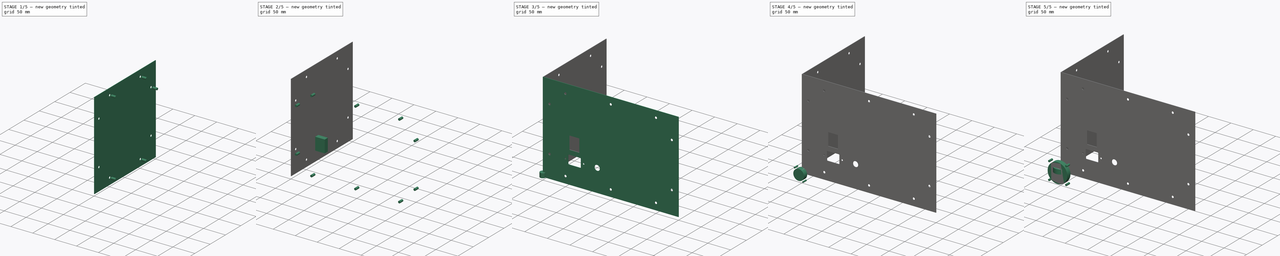
[diagram: build sequence overview — one tinted view per stage of 5, left to right]
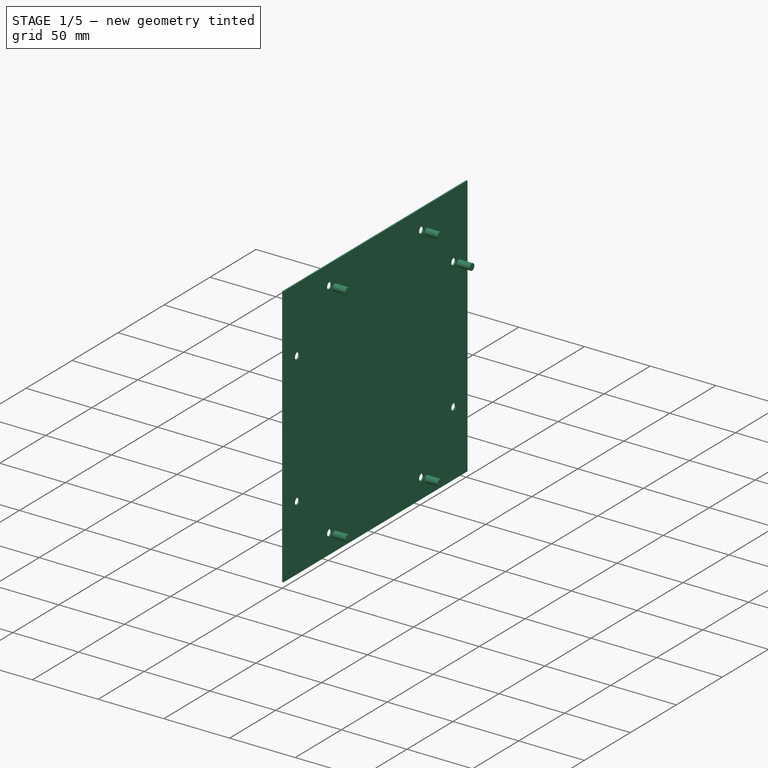
[diagram: stage 1 of 5 — iso view after this stage's code; geometry added in this stage tinted green]
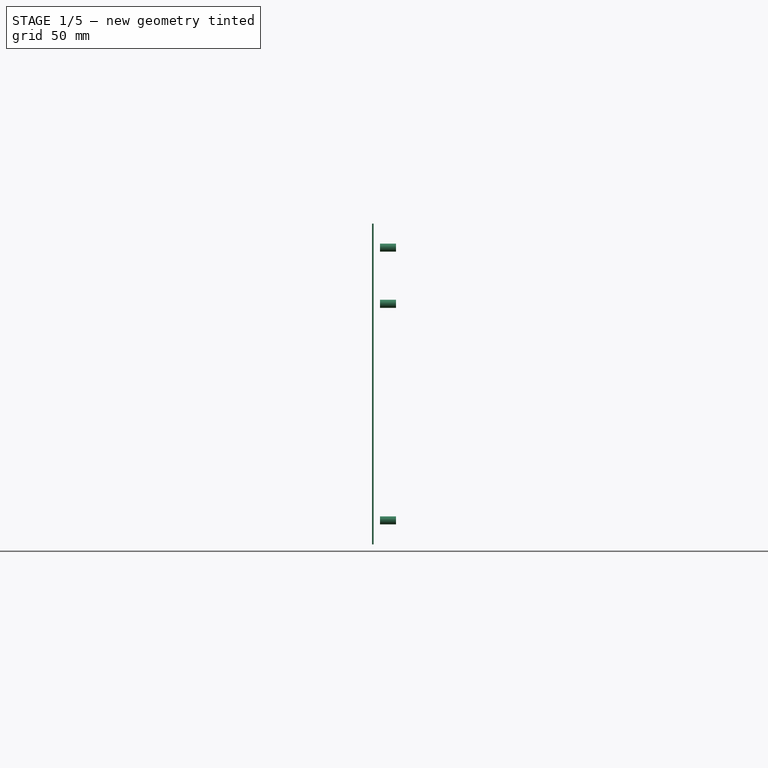
[diagram: stage 1 of 5 — front view after this stage's code; geometry added in this stage tinted green]
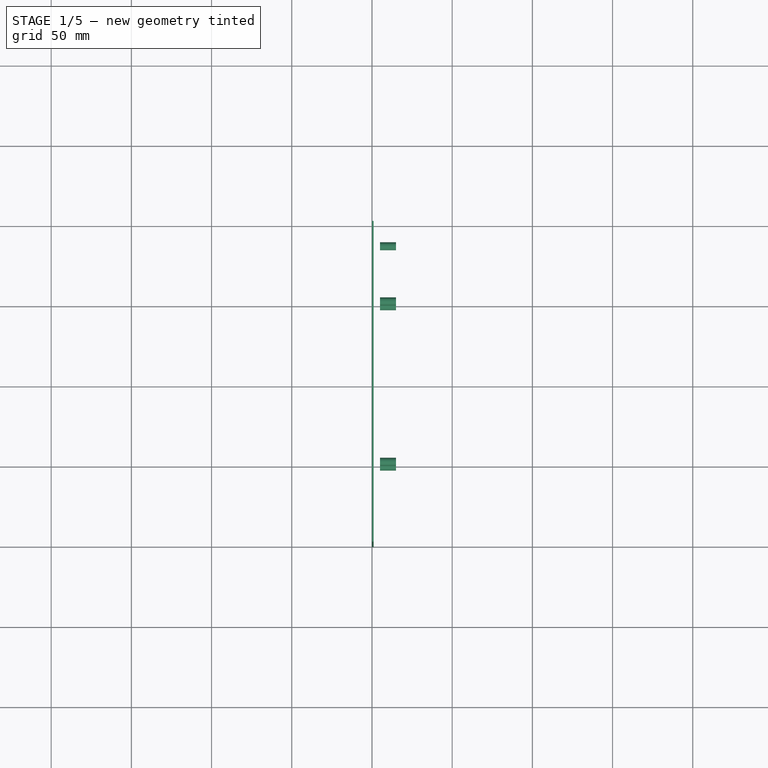
[diagram: stage 1 of 5 — top view after this stage's code; geometry added in this stage tinted green]
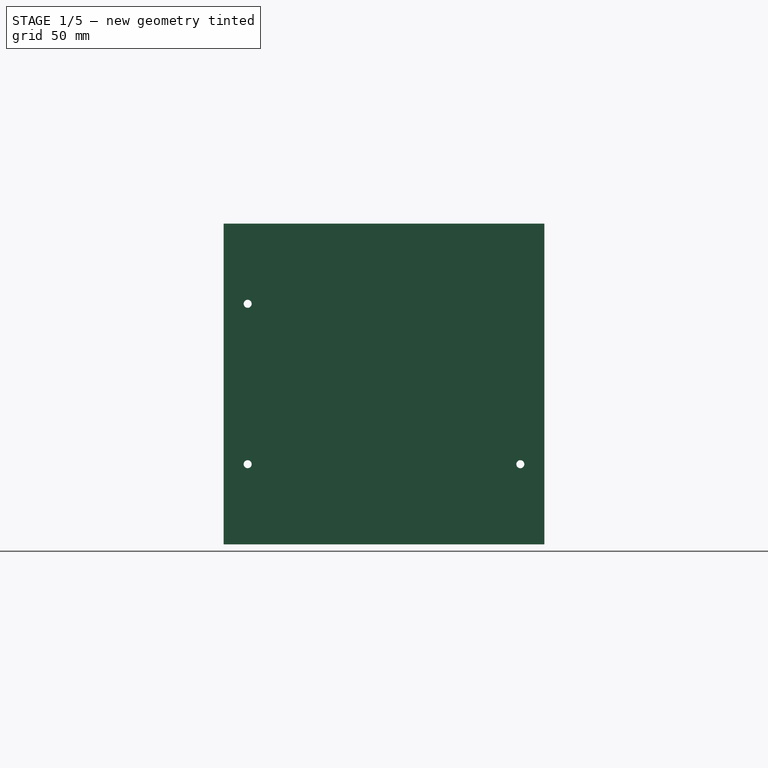
[diagram: stage 1 of 5 — right view after this stage's code; geometry added in this stage tinted green]
FCSTD DOCUMENT  (FreeCAD 0.20R)
Label: astrobox
License: All rights reserved
LicenseURL: http://en.wikipedia.org/wiki/All_rights_reserved
objects: Part::Cylinder×44, Sketcher::SketchObject×16, Part::Extrusion×16, Part::Box×16, Part::MultiFuse×3, Part::Cut×3, App::DocumentObjectGroup×1
note: 98 computed .brp shape members not serialized (recipe doc carries the construction recipe); baked Part::Feature solids carry a one-line shape summary decoded from their .brp

FEATURE [Part::Cylinder] Cylinder034  label="Válec006"
  Angle = 360
  AttacherType = Attacher::AttachEngine3D
  FirstAngle = 0
  Height = 10
  Placement = pos=(5,185,150) rot=(0,1,0;1.5708rad)
  Radius = 2.5
  SecondAngle = 0
FEATURE [Part::Cylinder] Cylinder036  label="Válec008"
  Angle = 360
  AttacherType = Attacher::AttachEngine3D
  FirstAngle = 0
  Height = 10
  Placement = pos=(5,50,15) rot=(0,1,0;1.5708rad)
  Radius = 2.5
  SecondAngle = 0
FEATURE [Part::Cylinder] Cylinder038  label="Válec010"
  Angle = 360
  AttacherType = Attacher::AttachEngine3D
  FirstAngle = 0
  Height = 10
  Placement = pos=(5,150,15) rot=(0,1,0;1.5708rad)
  Radius = 2.5
  SecondAngle = 0
FEATURE [Part::Cylinder] Cylinder040  label="Válec012"
  Angle = 360
  AttacherType = Attacher::AttachEngine3D
  FirstAngle = 0
  Height = 10
  Placement = pos=(5,50,185) rot=(0,1,0;1.5708rad)
  Radius = 2.5
  SecondAngle = 0
FEATURE [Part::Cylinder] Cylinder042  label="Válec014"
  Angle = 360
  AttacherType = Attacher::AttachEngine3D
  FirstAngle = 0
  Height = 10
  Placement = pos=(5,150,185) rot=(0,1,0;1.5708rad)
  Radius = 2.5
  SecondAngle = 0
FEATURE [Part::Box] Box016  label="vlevo001"
  AttacherType = Attacher::AttachEngine3D
  Height = 200
  Length = 1
  Width = 200
FEATURE [Part::Cylinder] Cylinder043  label="Válec015"
  Angle = 360
  AttacherType = Attacher::AttachEngine3D
  FirstAngle = 0
  Height = 10
  Placement = pos=(5,15,50) rot=(0,1,0;1.5708rad)
  Radius = 2.5
  SecondAngle = 0
FEATURE [Part::Cylinder] Cylinder044  label="Válec016"
  Angle = 360
  AttacherType = Attacher::AttachEngine3D
  FirstAngle = 0
  Height = 10
  Placement = pos=(5,15,150) rot=(0,1,0;1.5708rad)
  Radius = 2.5
  SecondAngle = 0
FEATURE [Part::Cylinder] Cylinder045  label="Válec017"
  Angle = 360
  AttacherType = Attacher::AttachEngine3D
  FirstAngle = 0
  Height = 10
  Placement = pos=(5,185,50) rot=(0,1,0;1.5708rad)
  Radius = 2.5
  SecondAngle = 0
FEATURE [Part::Cylinder] Cylinder046  label="Válec018"
  Angle = 360
  AttacherType = Attacher::AttachEngine3D
  FirstAngle = 0
  Height = 10
  Placement = pos=(5,185,150) rot=(0,1,0;1.5708rad)
  Radius = 2.5
  SecondAngle = 0
FEATURE [Part::Cylinder] Cylinder047  label="Válec019"
  Angle = 360
  AttacherType = Attacher::AttachEngine3D
  FirstAngle = 0
  Height = 10
  Placement = pos=(5,50,15) rot=(0,1,0;1.5708rad)
  Radius = 2.5
  SecondAngle = 0
FEATURE [Part::Cylinder] Cylinder048  label="Válec020"
  Angle = 360
  AttacherType = Attacher::AttachEngine3D
  FirstAngle = 0
  Height = 10
  Placement = pos=(5,150,15) rot=(0,1,0;1.5708rad)
  Radius = 2.5
  SecondAngle = 0
FEATURE [Part::Cylinder] Cylinder049  label="Válec021"
  Angle = 360
  AttacherType = Attacher::AttachEngine3D
  FirstAngle = 0
  Height = 10
  Placement = pos=(5,50,185) rot=(0,1,0;1.5708rad)
  Radius = 2.5
  SecondAngle = 0
FEATURE [Part::Cylinder] Cylinder050  label="Válec022"
  Angle = 360
  AttacherType = Attacher::AttachEngine3D
  FirstAngle = 0
  Height = 10
  Placement = pos=(5,150,185) rot=(0,1,0;1.5708rad)
  Radius = 2.5
  SecondAngle = 0
FEATURE [Part::MultiFuse] Fusion002
  Placement = pos=(-10,0,0) rot=(0,0,1;0rad)
  Shapes = -> [Cylinder043,Cylinder044,Cylinder045,Cylinder046,Cylinder047,Cylinder048,Cylinder049,Cylinder050]
FEATURE [Part::Cut] Cut002  label="pravy panel"
  Base = -> Box016
  Tool = -> Fusion002
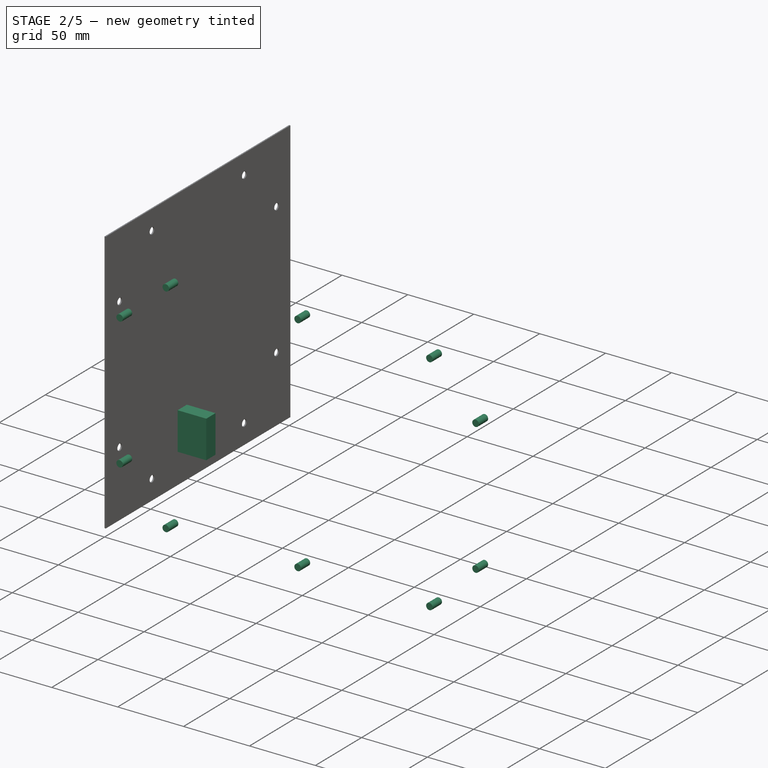
[diagram: stage 2 of 5 — iso view after this stage's code; geometry added in this stage tinted green]
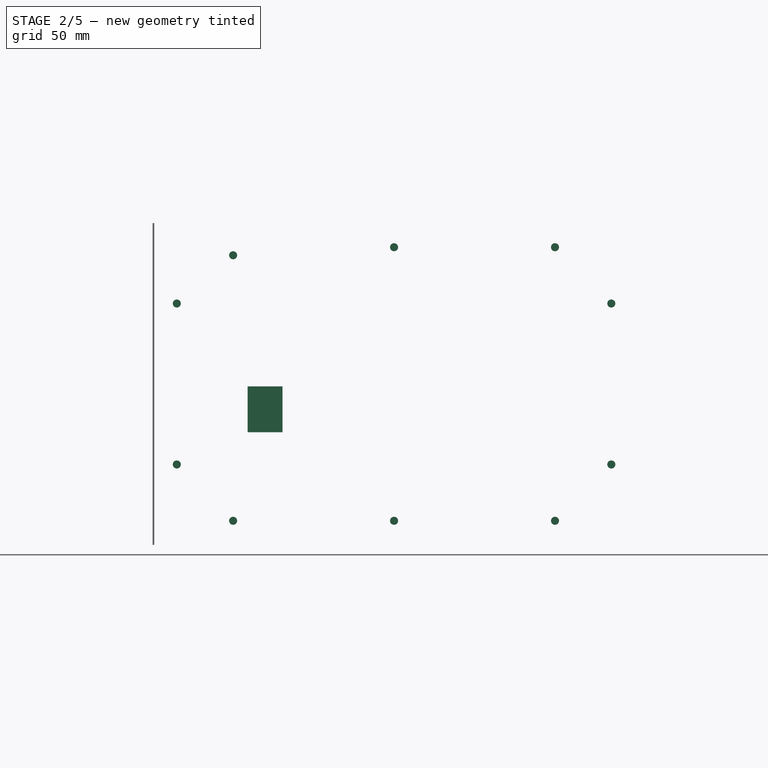
[diagram: stage 2 of 5 — front view after this stage's code; geometry added in this stage tinted green]
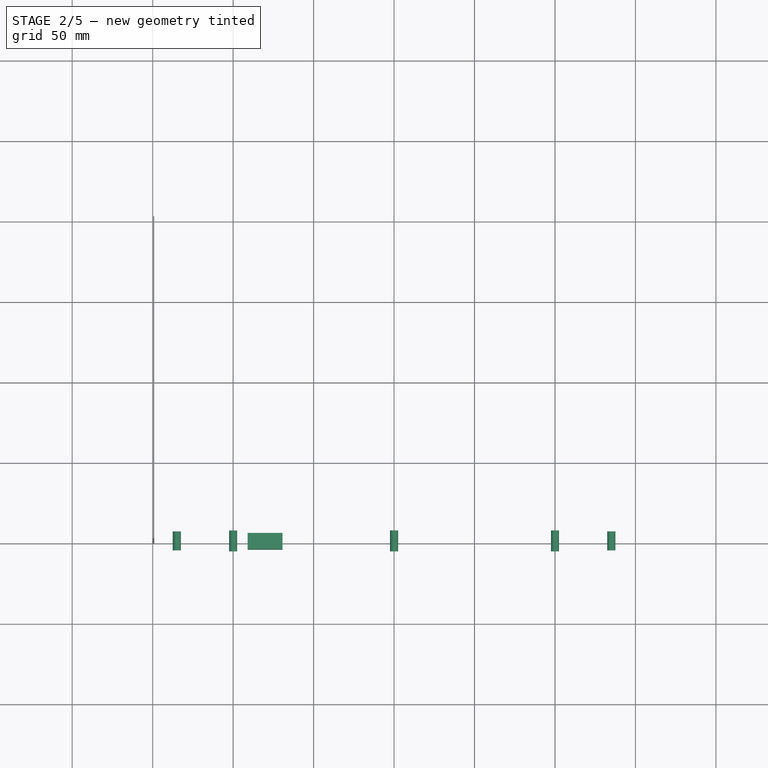
[diagram: stage 2 of 5 — top view after this stage's code; geometry added in this stage tinted green]
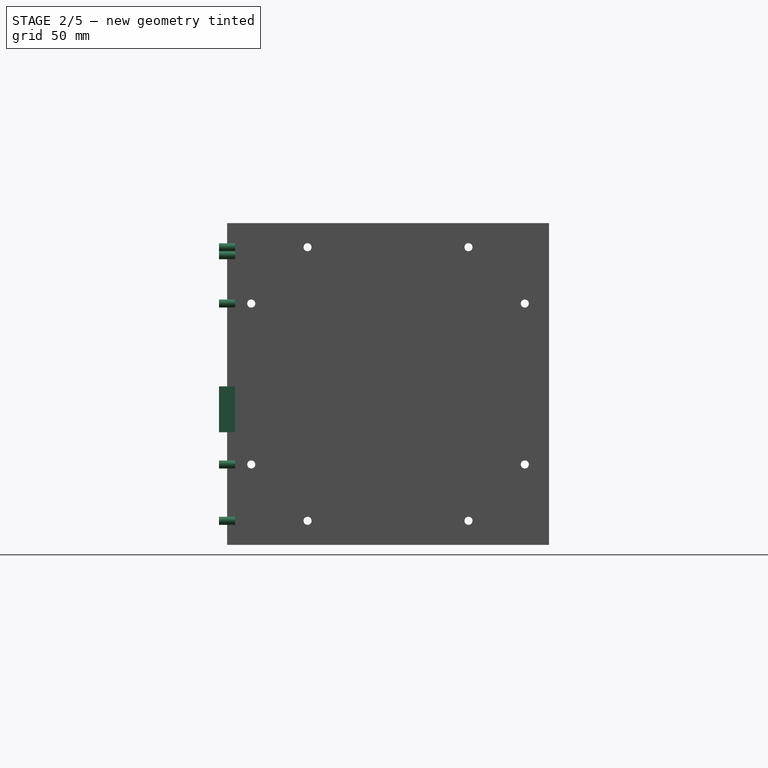
[diagram: stage 2 of 5 — right view after this stage's code; geometry added in this stage tinted green]
FEATURE [Part::Box] Box005  label="vlevo"
  AttacherType = Attacher::AttachEngine3D
  Height = 200
  Length = 1
  Width = 200
FEATURE [App::DocumentObjectGroup] Group  label="WIP montazni otvory"
  Group = -> [Cylinder008,Cylinder009,Cylinder010,Cylinder011,Cylinder012,Cylinder013,Cylinder014,Cylinder015,Cylinder016,Cylinder001,Cylinder002,Cylinder003,Cylinder004,Cylinder005,Cylinder006,Cylinder007,Box006,Box007,Box008,Box009,Box010,Box011,Box012,Box013,Box014,Extrude004,Extrude005,Extrude006,Extrude007,Extrude008,Extrude009,Extrude010,Extrude011,Extrude012,Extrude013,Extrude014,Extrude015,Extrude001,+3 more]
FEATURE [Part::Box] Box015  label="vypinac009"
  AttacherType = Attacher::AttachEngine3D
  Height = 10
  Length = 21.7
  Placement = pos=(59,5,70) rot=(1,0,0;1.5708rad)
  Width = 28.5
FEATURE [Part::Cylinder] Cylinder018  label="M5 otvor"
  Angle = 360
  AttacherType = Attacher::AttachEngine3D
  FirstAngle = 0
  Height = 10
  Placement = pos=(15,5,50) rot=(1,0,0;1.5708rad)
  Radius = 2.5
  SecondAngle = 0
FEATURE [Part::Cylinder] Cylinder019  label="M5 otvor001"
  Angle = 360
  AttacherType = Attacher::AttachEngine3D
  FirstAngle = 0
  Height = 10
  Placement = pos=(15,5,150) rot=(1,0,0;1.5708rad)
  Radius = 2.5
  SecondAngle = 0
FEATURE [Part::Cylinder] Cylinder020  label="M5 otvor002"
  Angle = 360
  AttacherType = Attacher::AttachEngine3D
  FirstAngle = 0
  Height = 10
  Placement = pos=(285,5,50) rot=(1,0,0;1.5708rad)
  Radius = 2.5
  SecondAngle = 0
FEATURE [Part::Cylinder] Cylinder021  label="M5 otvor003"
  Angle = 360
  AttacherType = Attacher::AttachEngine3D
  FirstAngle = 0
  Height = 10
  Placement = pos=(285,5,150) rot=(1,0,0;1.5708rad)
  Radius = 2.5
  SecondAngle = 0
FEATURE [Part::Cylinder] Cylinder022  label="M5 otvor004"
  Angle = 360
  AttacherType = Attacher::AttachEngine3D
  FirstAngle = 0
  Height = 10
  Placement = pos=(50,5,15) rot=(1,0,0;1.5708rad)
  Radius = 2.5
  SecondAngle = 0
FEATURE [Part::Cylinder] Cylinder023  label="M5 otvor005"
  Angle = 360
  AttacherType = Attacher::AttachEngine3D
  FirstAngle = 0
  Height = 10
  Placement = pos=(150,5,15) rot=(1,0,0;1.5708rad)
  Radius = 2.5
  SecondAngle = 0
FEATURE [Part::Cylinder] Cylinder024  label="M5 otvor006"
  Angle = 360
  AttacherType = Attacher::AttachEngine3D
  FirstAngle = 0
  Height = 10
  Placement = pos=(250,5,15) rot=(1,0,0;1.5708rad)
  Radius = 2.5
  SecondAngle = 0
FEATURE [Part::Cylinder] Cylinder025  label="M5 otvor007"
  Angle = 360
  AttacherType = Attacher::AttachEngine3D
  FirstAngle = 0
  Height = 10
  Placement = pos=(50,5,180) rot=(1,0,0;1.5708rad)
  Radius = 2.5
  SecondAngle = 0
FEATURE [Part::Cylinder] Cylinder026  label="M5 otvor008"
  Angle = 360
  AttacherType = Attacher::AttachEngine3D
  FirstAngle = 0
  Height = 10
  Placement = pos=(150,5,185) rot=(1,0,0;1.5708rad)
  Radius = 2.5
  SecondAngle = 0
FEATURE [Part::Cylinder] Cylinder027  label="M5 otvor009"
  Angle = 360
  AttacherType = Attacher::AttachEngine3D
  FirstAngle = 0
  Height = 10
  Placement = pos=(250,5,185) rot=(1,0,0;1.5708rad)
  Radius = 2.5
  SecondAngle = 0
FEATURE [Part::Cylinder] Cylinder028  label="Válec"
  Angle = 360
  AttacherType = Attacher::AttachEngine3D
  FirstAngle = 0
  Height = 10
  Placement = pos=(5,15,50) rot=(0,1,0;1.5708rad)
  Radius = 2.5
  SecondAngle = 0
FEATURE [Part::Cylinder] Cylinder030  label="Válec002"
  Angle = 360
  AttacherType = Attacher::AttachEngine3D
  FirstAngle = 0
  Height = 10
  Placement = pos=(5,15,150) rot=(0,1,0;1.5708rad)
  Radius = 2.5
  SecondAngle = 0
FEATURE [Part::Cylinder] Cylinder032  label="Válec004"
  Angle = 360
  AttacherType = Attacher::AttachEngine3D
  FirstAngle = 0
  Height = 10
  Placement = pos=(5,185,50) rot=(0,1,0;1.5708rad)
  Radius = 2.5
  SecondAngle = 0
FEATURE [Part::MultiFuse] Fusion001
  Placement = pos=(-10,0,0) rot=(0,0,1;0rad)
  Shapes = -> [Cylinder028,Cylinder030,Cylinder032,Cylinder034,Cylinder036,Cylinder038,Cylinder040,Cylinder042]
FEATURE [Part::Cut] Cut001  label="levy panel"
  Base = -> Box005
  Tool = -> Fusion001
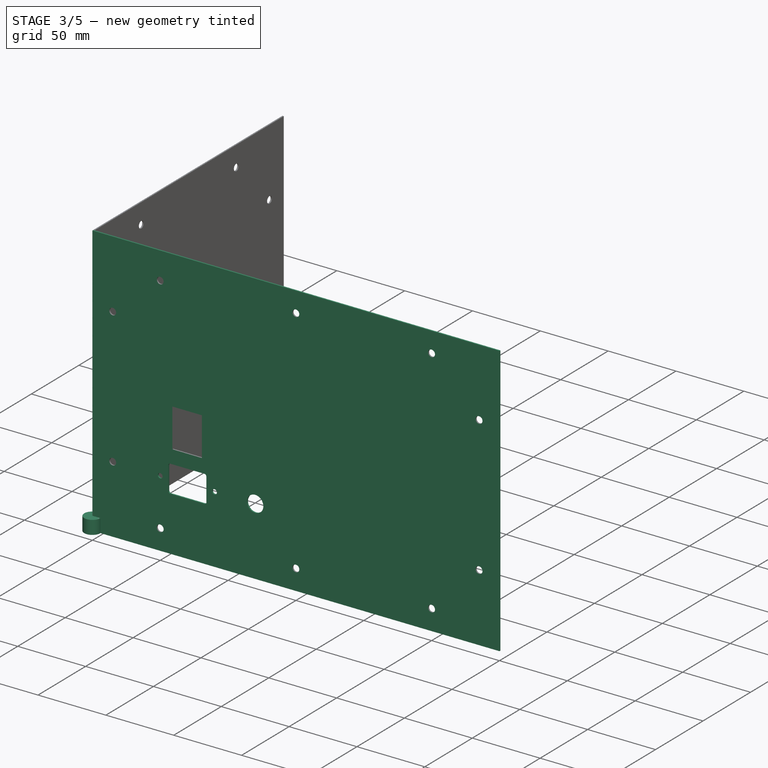
[diagram: stage 3 of 5 — iso view after this stage's code; geometry added in this stage tinted green]
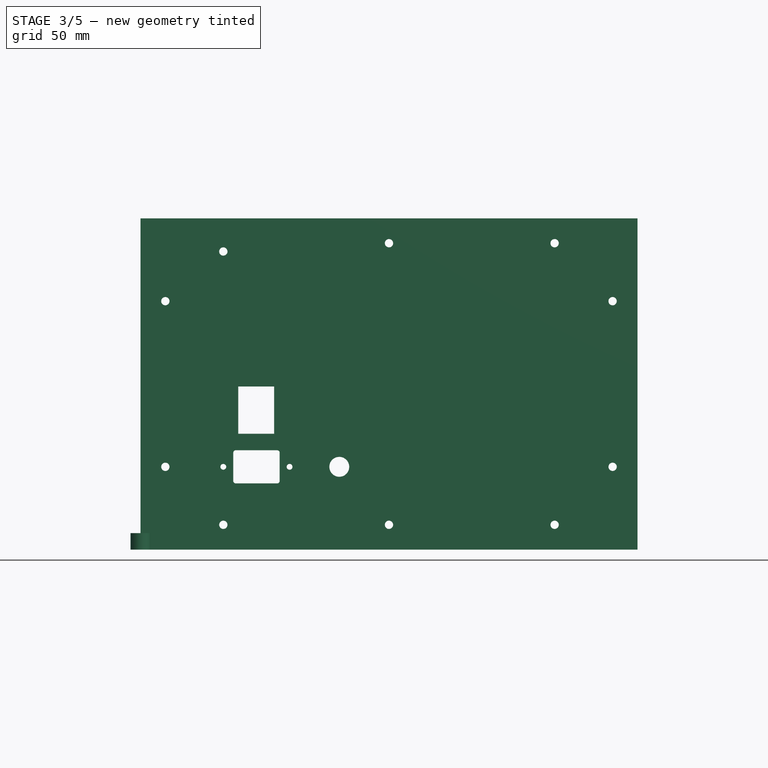
[diagram: stage 3 of 5 — front view after this stage's code; geometry added in this stage tinted green]
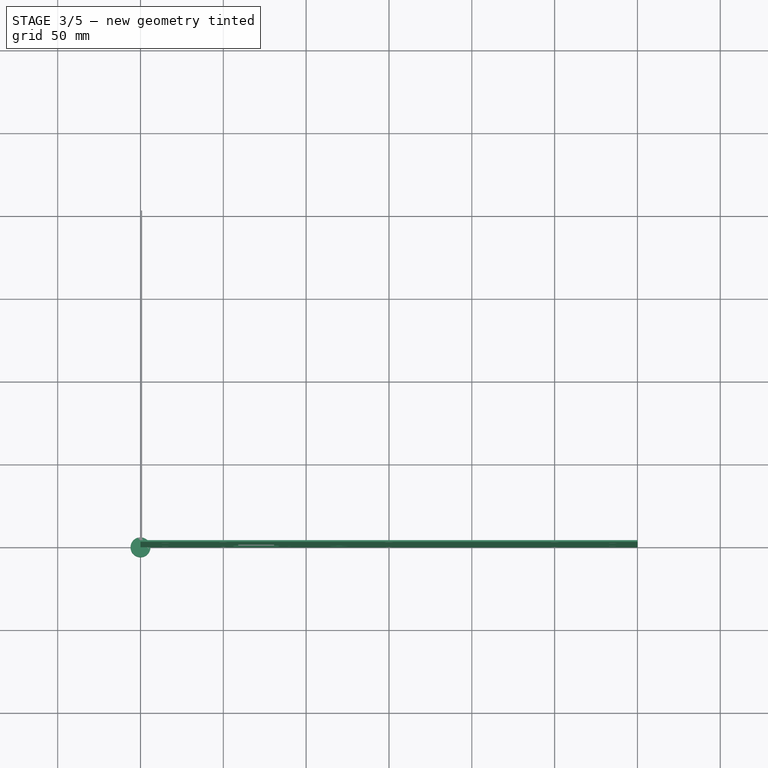
[diagram: stage 3 of 5 — top view after this stage's code; geometry added in this stage tinted green]
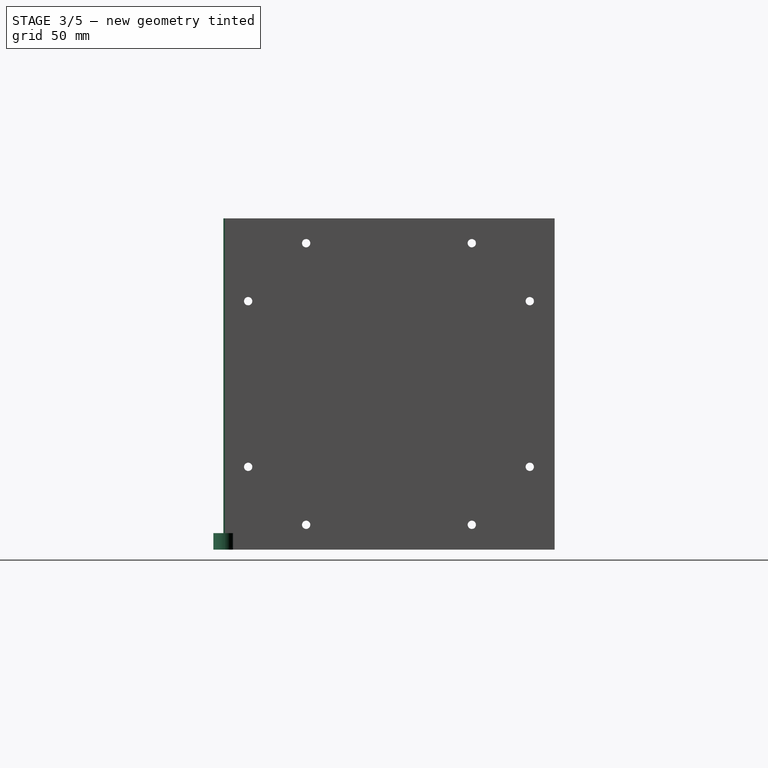
[diagram: stage 3 of 5 — right view after this stage's code; geometry added in this stage tinted green]
FEATURE [Sketcher::SketchObject] Sketch
  FullyConstrained = true
  Placement = pos=(0,0,0) rot=(1,0,0;1.5708rad)
  sketch-geometry (22):
    g0: Circle CenterX=0 CenterY=0 CenterZ=0 NormalX=0 NormalY=0 NormalZ=1 AngleXU=0 Radius=1.75
    g1: Circle CenterX=40 CenterY=0 CenterZ=0 NormalX=0 NormalY=0 NormalZ=1 AngleXU=0 Radius=1.75
    g2: ArcOfCircle CenterX=7.5 CenterY=8.5 CenterZ=0 NormalX=0 NormalY=0 NormalZ=1 AngleXU=0 Radius=1.5 StartAngle=1.5708 EndAngle=3.14159
    g3: ArcOfCircle CenterX=32.5 CenterY=8.5 CenterZ=0 NormalX=0 NormalY=0 NormalZ=1 AngleXU=0 Radius=1.5 StartAngle=2e-16 EndAngle=1.5708
    g4: ArcOfCircle CenterX=32.5 CenterY=-8.5 CenterZ=0 NormalX=0 NormalY=0 NormalZ=1 AngleXU=0 Radius=1.5 StartAngle=4.71239 EndAngle=6.28319
    g5: ArcOfCircle CenterX=7.5 CenterY=-8.5 CenterZ=0 NormalX=0 NormalY=0 NormalZ=1 AngleXU=0 Radius=1.5 StartAngle=3.14159 EndAngle=4.71239
    g6: LineSegment StartX=6 StartY=8.5 StartZ=0 EndX=6 EndY=-8.5 EndZ=0
    g7: LineSegment StartX=7.5 StartY=10 StartZ=0 EndX=32.5 EndY=10 EndZ=0
    g8: LineSegment StartX=34 StartY=8.5 StartZ=0 EndX=34 EndY=-8.5 EndZ=0
    g9: LineSegment StartX=32.5 StartY=-10 StartZ=0 EndX=7.5 EndY=-10 EndZ=0
    g10: LineSegment StartX=7.5 StartY=8.5 StartZ=0 EndX=32.5 EndY=8.5 EndZ=0
    g11: LineSegment StartX=32.5 StartY=8.5 StartZ=0 EndX=32.5 EndY=-8.5 EndZ=0
    g12: LineSegment StartX=32.5 StartY=-8.5 StartZ=0 EndX=7.5 EndY=-8.5 EndZ=0
    g13: LineSegment StartX=7.5 StartY=-8.5 StartZ=0 EndX=7.5 EndY=8.5 EndZ=0
    g14: LineSegment StartX=7.5 StartY=10 StartZ=0 EndX=7.5 EndY=8.5 EndZ=0
    g15: LineSegment StartX=6 StartY=8.5 StartZ=0 EndX=7.5 EndY=8.5 EndZ=0
    g16: LineSegment StartX=32.5 StartY=10 StartZ=0 EndX=32.5 EndY=8.5 EndZ=0
    g17: LineSegment StartX=34 StartY=8.5 StartZ=0 EndX=32.5 EndY=8.5 EndZ=0
    g18: LineSegment StartX=34 StartY=-8.5 StartZ=0 EndX=32.5 EndY=-8.5 EndZ=0
    g19: LineSegment StartX=32.5 StartY=-10 StartZ=0 EndX=32.5 EndY=-8.5 EndZ=0
    g20: LineSegment StartX=7.5 StartY=-8.5 StartZ=0 EndX=7.5 EndY=-10 EndZ=0
    g21: LineSegment StartX=7.5 StartY=-8.5 StartZ=0 EndX=6 EndY=-8.5 EndZ=0
  constraints (57):
    c: Coincident(g0,g-1)
    c: PointOnObject(g1,g-1)
    c: Diameter(g0) = 3.5
    c: Diameter(g1) = 3.5
    c: DistanceX(g0,g1) = 40
    c: Coincident(g6,g2)
    c: Coincident(g6,g5)
    c: Coincident(g7,g2)
    c: Coincident(g7,g3)
    c: Coincident(g8,g3)
    c: Coincident(g8,g4)
    c: Coincident(g9,g4)
    c: Coincident(g9,g5)
    c: Coincident(g10,g11)
    c: Coincident(g11,g12)
    c: Coincident(g12,g13)
    c: Coincident(g13,g10)
    c: Horizontal(g10)
    c: Horizontal(g12)
    c: Vertical(g11)
    c: Vertical(g13)
    c: Coincident(g10,g2)
    c: Coincident(g11,g4)
    c: Coincident(g12,g5)
    c: Coincident(g3,g10)
    c: Diameter(g2) = 3
    c: Coincident(g14,g2)
    c: Coincident(g14,g2)
    c: Coincident(g15,g2)
    c: Coincident(g15,g2)
    c: Horizontal(g7)
    c: Horizontal(g9)
    c: Vertical(g6)
    c: Vertical(g8)
    c: Horizontal(g15)
    c: Vertical(g14)
    c: Coincident(g16,g3)
    c: Coincident(g16,g3)
    c: Coincident(g17,g3)
    c: Coincident(g17,g3)
    c: Coincident(g18,g4)
    c: Coincident(g18,g4)
    c: Coincident(g19,g4)
    c: Coincident(g19,g4)
    c: Coincident(g20,g5)
    c: Coincident(g20,g5)
    c: Coincident(g21,g5)
    c: Coincident(g21,g5)
    c: Vertical(g20)
    c: Vertical(g19)
    c: Vertical(g16)
    c: Horizontal(g17)
    c: Horizontal(g18)
    c: DistanceX(g2,g3) = 28
    c: DistanceY(g4,g3) = 20
    c: DistanceY(g-1,g2) = 10
    c: DistanceX(g0,g5) = 6
FEATURE [Part::Extrusion] Extrude  label="power in"
  Base = -> Sketch
  Dir = (0,-1,-3e-16)
  DirMode = 2
  FaceMakerClass = Part::FaceMakerBullseye
  LengthFwd = 10
  LengthRev = 0
  Placement = pos=(50,5,50) rot=(0,0,1;0rad)
  Solid = true
  Symmetric = false
FEATURE [Part::Box] Box003  label="zadek"
  AttacherType = Attacher::AttachEngine3D
  Height = 200
  Length = 300
  Width = 1
FEATURE [Part::Cylinder] Cylinder006  label="pojistka005"
  Angle = 360
  AttacherType = Attacher::AttachEngine3D
  FirstAngle = 0
  Height = 10
  Radius = 6
  SecondAngle = 0
FEATURE [Part::Cylinder] Cylinder007  label="pojistka006"
  Angle = 360
  AttacherType = Attacher::AttachEngine3D
  FirstAngle = 0
  Height = 10
  Radius = 6
  SecondAngle = 0
FEATURE [Part::Cylinder] Cylinder008  label="pojistka007"
  Angle = 360
  AttacherType = Attacher::AttachEngine3D
  FirstAngle = 0
  Height = 10
  Radius = 6
  SecondAngle = 0
FEATURE [Part::Cylinder] Cylinder009  label="pojistka008"
  Angle = 360
  AttacherType = Attacher::AttachEngine3D
  FirstAngle = 0
  Height = 10
  Radius = 6
  SecondAngle = 0
FEATURE [Part::Cylinder] Cylinder010  label="pojistka009"
  Angle = 360
  AttacherType = Attacher::AttachEngine3D
  FirstAngle = 0
  Height = 10
  Radius = 6
  SecondAngle = 0
FEATURE [Part::Cylinder] Cylinder011  label="pojistka010"
  Angle = 360
  AttacherType = Attacher::AttachEngine3D
  FirstAngle = 0
  Height = 10
  Radius = 6
  SecondAngle = 0
FEATURE [Part::Cylinder] Cylinder012  label="pojistka011"
  Angle = 360
  AttacherType = Attacher::AttachEngine3D
  FirstAngle = 0
  Height = 10
  Radius = 6
  SecondAngle = 0
FEATURE [Part::Cylinder] Cylinder013  label="pojistka012"
  Angle = 360
  AttacherType = Attacher::AttachEngine3D
  FirstAngle = 0
  Height = 10
  Radius = 6
  SecondAngle = 0
FEATURE [Part::Cylinder] Cylinder014  label="pojistka013"
  Angle = 360
  AttacherType = Attacher::AttachEngine3D
  FirstAngle = 0
  Height = 10
  Radius = 6
  SecondAngle = 0
FEATURE [Part::Cylinder] Cylinder015  label="pojistka014"
  Angle = 360
  AttacherType = Attacher::AttachEngine3D
  FirstAngle = 0
  Height = 10
  Radius = 6
  SecondAngle = 0
FEATURE [Part::Cylinder] Cylinder016  label="pojistka015"
  Angle = 360
  AttacherType = Attacher::AttachEngine3D
  FirstAngle = 0
  Height = 10
  Radius = 6
  SecondAngle = 0
FEATURE [Part::Cylinder] Cylinder017  label="pojistka016"
  Angle = 360
  AttacherType = Attacher::AttachEngine3D
  FirstAngle = 0
  Height = 10
  Placement = pos=(120,5,50) rot=(1,0,0;1.5708rad)
  Radius = 6
  SecondAngle = 0
FEATURE [Part::MultiFuse] Fusion
  Shapes = -> [Extrude,Cylinder017,Box015,Cylinder018,Cylinder019,Cylinder020,Cylinder021,Cylinder022,Cylinder023,Cylinder024,Cylinder025,Cylinder027,Cylinder026]
FEATURE [Part::Cut] Cut  label="zadni panel"
  Base = -> Box003
  Tool = -> Fusion
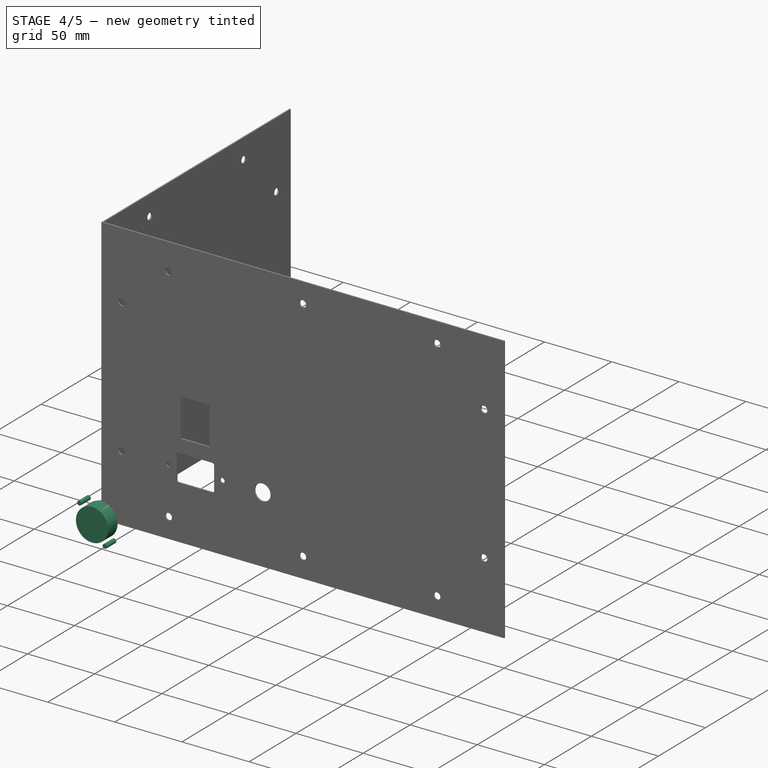
[diagram: stage 4 of 5 — iso view after this stage's code; geometry added in this stage tinted green]
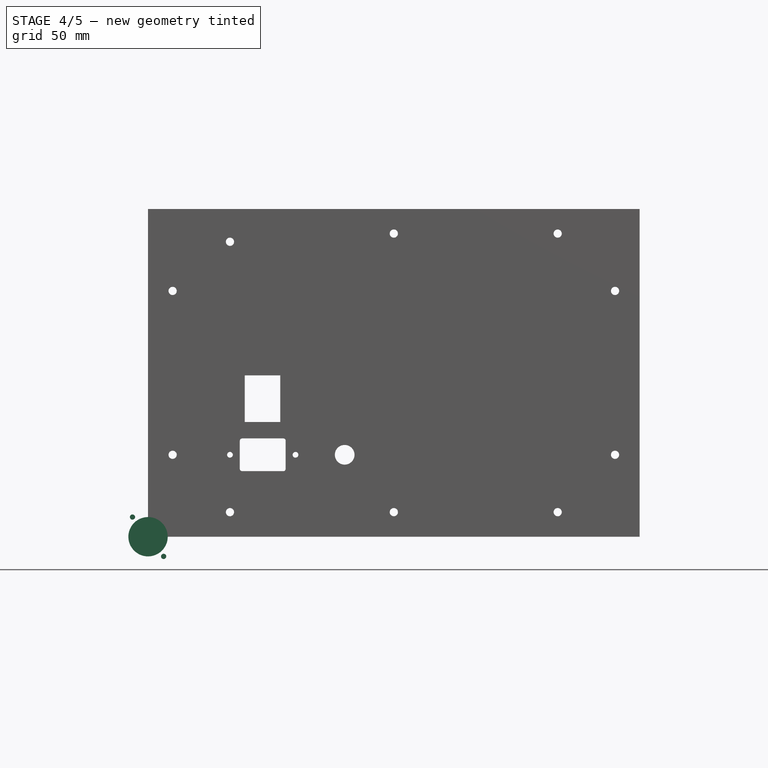
[diagram: stage 4 of 5 — front view after this stage's code; geometry added in this stage tinted green]
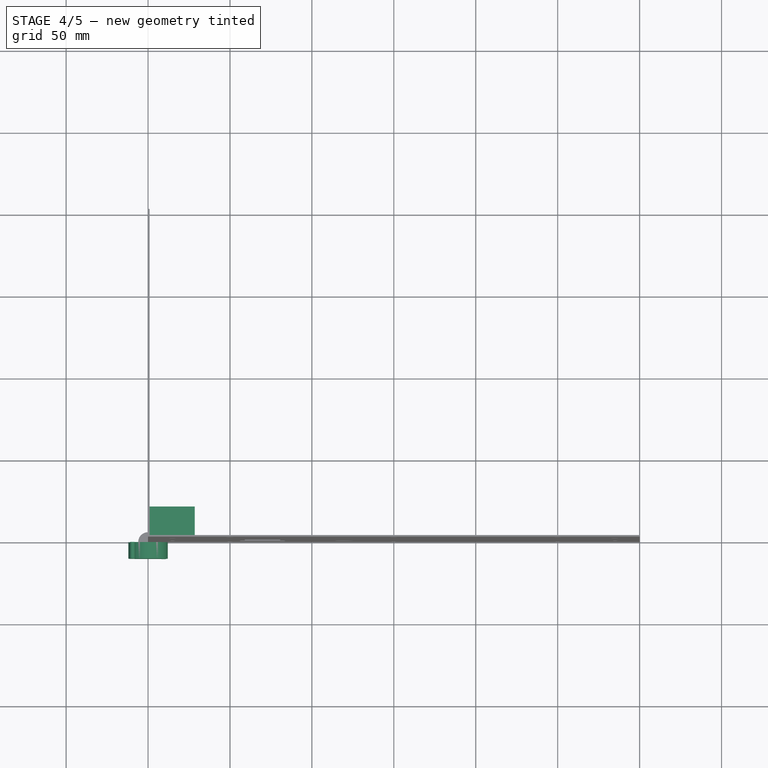
[diagram: stage 4 of 5 — top view after this stage's code; geometry added in this stage tinted green]
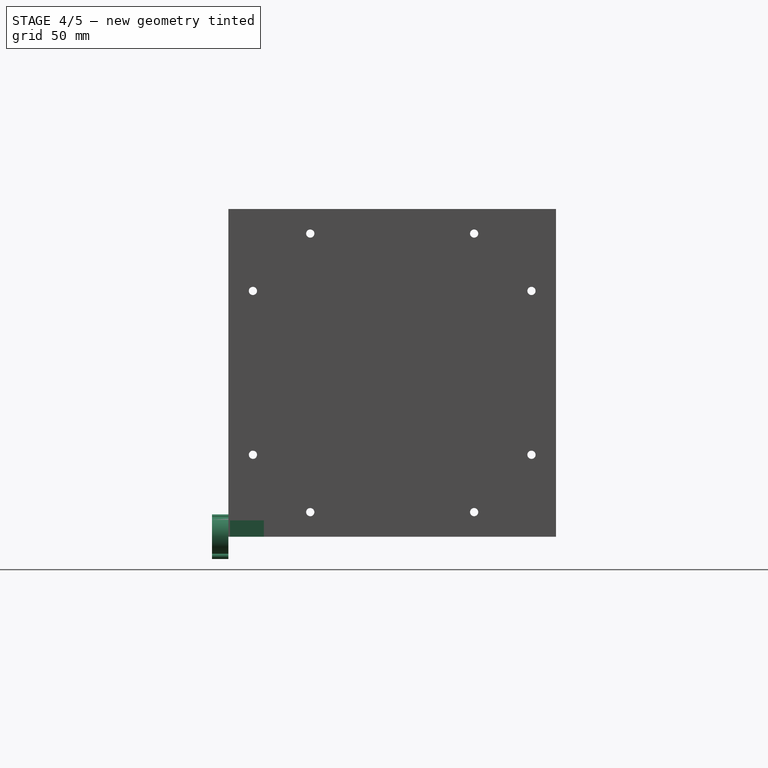
[diagram: stage 4 of 5 — right view after this stage's code; geometry added in this stage tinted green]
FEATURE [Sketcher::SketchObject] Sketch013
  FullyConstrained = true
  Placement = pos=(0,0,0) rot=(1,0,0;1.5708rad)
  sketch-geometry (6):
    g0: Circle CenterX=0 CenterY=0 CenterZ=0 NormalX=0 NormalY=0 NormalZ=1 AngleXU=0 Radius=12
    g1: Circle CenterX=-9.5 CenterY=12 CenterZ=0 NormalX=0 NormalY=0 NormalZ=1 AngleXU=0 Radius=1.6
    g2: Circle CenterX=9.5 CenterY=-12 CenterZ=0 NormalX=0 NormalY=0 NormalZ=1 AngleXU=0 Radius=1.6
    g3: LineSegment StartX=-9.5 StartY=12 StartZ=0 EndX=9.5 EndY=-12 EndZ=0
    g4: LineSegment StartX=-9.5 StartY=12 StartZ=0 EndX=-9.5 EndY=0 EndZ=0
    g5: LineSegment StartX=9.5 StartY=-12 StartZ=0 EndX=9.5 EndY=0 EndZ=0
  constraints (16):
    c: Coincident(g0,g-1)
    c: Equal(g2,g1)
    c: Coincident(g3,g1)
    c: Coincident(g3,g2)
    c: PointOnObject(g0,g3)
    c: Diameter(g1) = 3.2
    c: Diameter(g0) = 24
    c: DistanceY(g2,g1) = 24
    c: DistanceX(g1,g2) = 19
    c: Coincident(g4,g1)
    c: PointOnObject(g4,g-1)
    c: Vertical(g4)
    c: Coincident(g5,g2)
    c: PointOnObject(g5,g-1)
    c: Vertical(g5)
    c: Equal(g5,g4)
FEATURE [Part::Extrusion] Extrude013  label="XLR009"
  Base = -> Sketch013
  Dir = (0,-1,-3e-16)
  DirMode = 2
  FaceMakerClass = Part::FaceMakerBullseye
  LengthFwd = 10
  LengthRev = 0
  Solid = true
  Symmetric = false
FEATURE [Sketcher::SketchObject] Sketch014
  FullyConstrained = true
  Placement = pos=(0,0,0) rot=(1,0,0;1.5708rad)
  sketch-geometry (6):
    g0: Circle CenterX=0 CenterY=0 CenterZ=0 NormalX=0 NormalY=0 NormalZ=1 AngleXU=0 Radius=12
    g1: Circle CenterX=-9.5 CenterY=12 CenterZ=0 NormalX=0 NormalY=0 NormalZ=1 AngleXU=0 Radius=1.6
    g2: Circle CenterX=9.5 CenterY=-12 CenterZ=0 NormalX=0 NormalY=0 NormalZ=1 AngleXU=0 Radius=1.6
    g3: LineSegment StartX=-9.5 StartY=12 StartZ=0 EndX=9.5 EndY=-12 EndZ=0
    g4: LineSegment StartX=-9.5 StartY=12 StartZ=0 EndX=-9.5 EndY=0 EndZ=0
    g5: LineSegment StartX=9.5 StartY=-12 StartZ=0 EndX=9.5 EndY=0 EndZ=0
  constraints (16):
    c: Coincident(g0,g-1)
    c: Equal(g2,g1)
    c: Coincident(g3,g1)
    c: Coincident(g3,g2)
    c: PointOnObject(g0,g3)
    c: Diameter(g1) = 3.2
    c: Diameter(g0) = 24
    c: DistanceY(g2,g1) = 24
    c: DistanceX(g1,g2) = 19
    c: Coincident(g4,g1)
    c: PointOnObject(g4,g-1)
    c: Vertical(g4)
    c: Coincident(g5,g2)
    c: PointOnObject(g5,g-1)
    c: Vertical(g5)
    c: Equal(g5,g4)
FEATURE [Part::Extrusion] Extrude014  label="XLR010"
  Base = -> Sketch014
  Dir = (0,-1,-3e-16)
  DirMode = 2
  FaceMakerClass = Part::FaceMakerBullseye
  LengthFwd = 10
  LengthRev = 0
  Solid = true
  Symmetric = false
FEATURE [Sketcher::SketchObject] Sketch015
  FullyConstrained = true
  Placement = pos=(0,0,0) rot=(1,0,0;1.5708rad)
  sketch-geometry (6):
    g0: Circle CenterX=0 CenterY=0 CenterZ=0 NormalX=0 NormalY=0 NormalZ=1 AngleXU=0 Radius=12
    g1: Circle CenterX=-9.5 CenterY=12 CenterZ=0 NormalX=0 NormalY=0 NormalZ=1 AngleXU=0 Radius=1.6
    g2: Circle CenterX=9.5 CenterY=-12 CenterZ=0 NormalX=0 NormalY=0 NormalZ=1 AngleXU=0 Radius=1.6
    g3: LineSegment StartX=-9.5 StartY=12 StartZ=0 EndX=9.5 EndY=-12 EndZ=0
    g4: LineSegment StartX=-9.5 StartY=12 StartZ=0 EndX=-9.5 EndY=0 EndZ=0
    g5: LineSegment StartX=9.5 StartY=-12 StartZ=0 EndX=9.5 EndY=0 EndZ=0
  constraints (16):
    c: Coincident(g0,g-1)
    c: Equal(g2,g1)
    c: Coincident(g3,g1)
    c: Coincident(g3,g2)
    c: PointOnObject(g0,g3)
    c: Diameter(g1) = 3.2
    c: Diameter(g0) = 24
    c: DistanceY(g2,g1) = 24
    c: DistanceX(g1,g2) = 19
    c: Coincident(g4,g1)
    c: PointOnObject(g4,g-1)
    c: Vertical(g4)
    c: Coincident(g5,g2)
    c: PointOnObject(g5,g-1)
    c: Vertical(g5)
    c: Equal(g5,g4)
FEATURE [Part::Extrusion] Extrude015  label="XLR011"
  Base = -> Sketch015
  Dir = (0,-1,-3e-16)
  DirMode = 2
  FaceMakerClass = Part::FaceMakerBullseye
  LengthFwd = 10
  LengthRev = 0
  Solid = true
  Symmetric = false
FEATURE [Part::Box] Box006  label="vypinac"
  AttacherType = Attacher::AttachEngine3D
  Height = 10
  Length = 28.5
  Width = 21.7
FEATURE [Part::Box] Box007  label="vypinac001"
  AttacherType = Attacher::AttachEngine3D
  Height = 10
  Length = 28.5
  Width = 21.7
FEATURE [Part::Box] Box008  label="vypinac002"
  AttacherType = Attacher::AttachEngine3D
  Height = 10
  Length = 28.5
  Width = 21.7
FEATURE [Part::Box] Box009  label="vypinac003"
  AttacherType = Attacher::AttachEngine3D
  Height = 10
  Length = 28.5
  Width = 21.7
FEATURE [Part::Box] Box010  label="vypinac004"
  AttacherType = Attacher::AttachEngine3D
  Height = 10
  Length = 28.5
  Width = 21.7
FEATURE [Part::Box] Box011  label="vypinac005"
  AttacherType = Attacher::AttachEngine3D
  Height = 10
  Length = 28.5
  Width = 21.7
FEATURE [Part::Box] Box012  label="vypinac006"
  AttacherType = Attacher::AttachEngine3D
  Height = 10
  Length = 28.5
  Width = 21.7
FEATURE [Part::Box] Box013  label="vypinac007"
  AttacherType = Attacher::AttachEngine3D
  Height = 10
  Length = 28.5
  Width = 21.7
FEATURE [Part::Box] Box014  label="vypinac008"
  AttacherType = Attacher::AttachEngine3D
  Height = 10
  Length = 28.5
  Width = 21.7
FEATURE [Part::Cylinder] Cylinder001  label="pojistka"
  Angle = 360
  AttacherType = Attacher::AttachEngine3D
  FirstAngle = 0
  Height = 10
  Radius = 6
  SecondAngle = 0
FEATURE [Part::Cylinder] Cylinder002  label="pojistka001"
  Angle = 360
  AttacherType = Attacher::AttachEngine3D
  FirstAngle = 0
  Height = 10
  Radius = 6
  SecondAngle = 0
FEATURE [Part::Cylinder] Cylinder003  label="pojistka002"
  Angle = 360
  AttacherType = Attacher::AttachEngine3D
  FirstAngle = 0
  Height = 10
  Radius = 6
  SecondAngle = 0
FEATURE [Part::Cylinder] Cylinder004  label="pojistka003"
  Angle = 360
  AttacherType = Attacher::AttachEngine3D
  FirstAngle = 0
  Height = 10
  Radius = 6
  SecondAngle = 0
FEATURE [Part::Cylinder] Cylinder005  label="pojistka004"
  Angle = 360
  AttacherType = Attacher::AttachEngine3D
  FirstAngle = 0
  Height = 10
  Radius = 6
  SecondAngle = 0
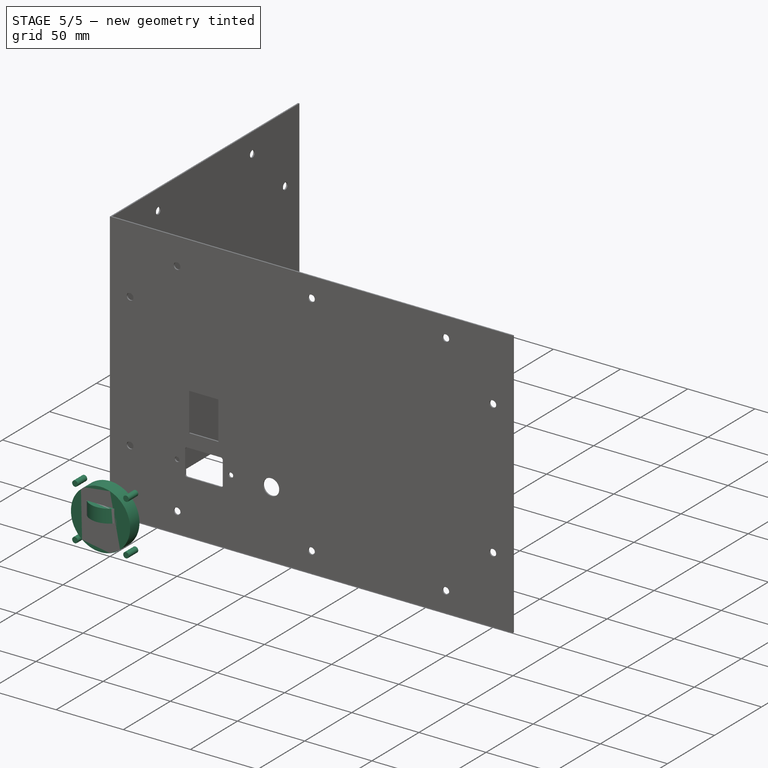
[diagram: stage 5 of 5 — iso view after this stage's code; geometry added in this stage tinted green]
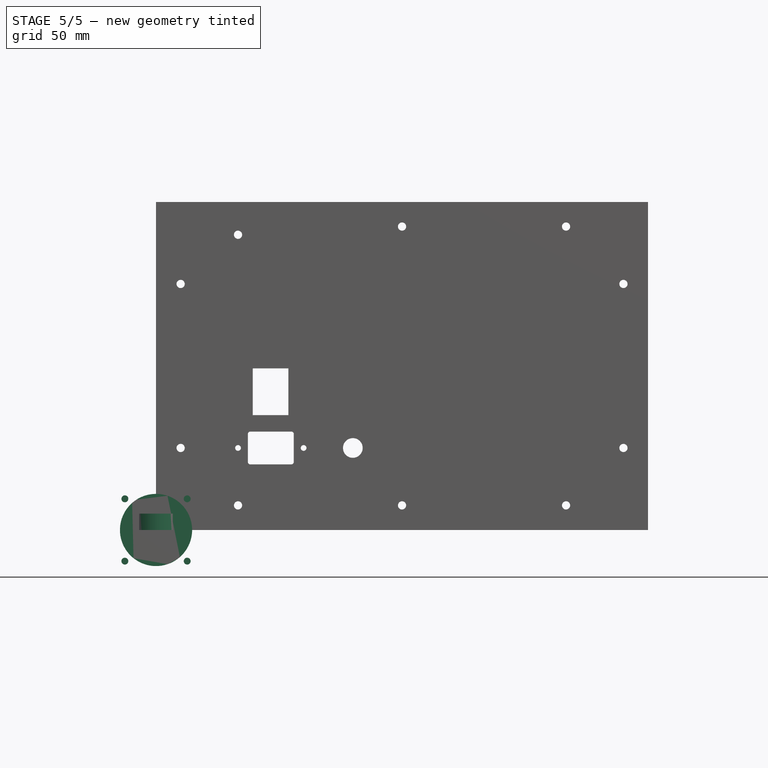
[diagram: stage 5 of 5 — front view after this stage's code; geometry added in this stage tinted green]
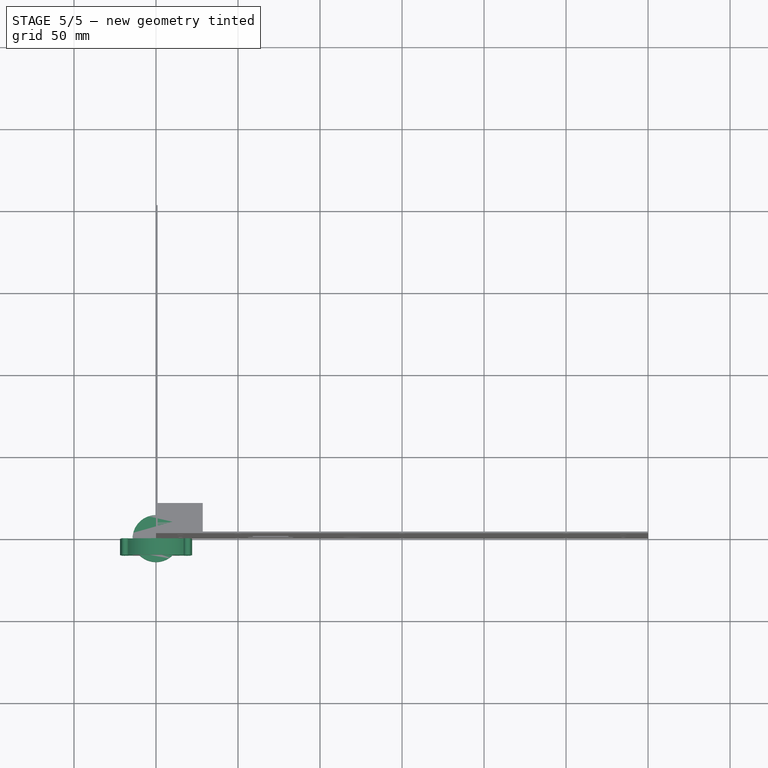
[diagram: stage 5 of 5 — top view after this stage's code; geometry added in this stage tinted green]
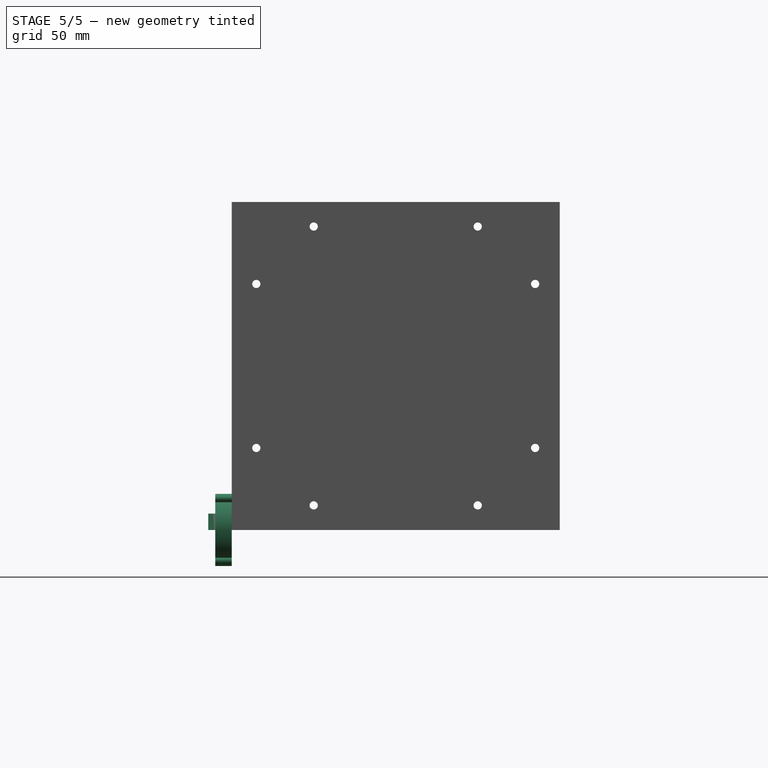
[diagram: stage 5 of 5 — right view after this stage's code; geometry added in this stage tinted green]
FEATURE [Sketcher::SketchObject] Sketch001
  FullyConstrained = true
  Placement = pos=(0,0,0) rot=(1,0,0;1.5708rad)
  sketch-geometry (9):
    g0: Circle CenterX=0 CenterY=0 CenterZ=0 NormalX=0 NormalY=0 NormalZ=1 AngleXU=0 Radius=22
    g1: Circle CenterX=-19 CenterY=19 CenterZ=0 NormalX=0 NormalY=0 NormalZ=1 AngleXU=0 Radius=2.1
    g2: Circle CenterX=-19 CenterY=-19 CenterZ=0 NormalX=0 NormalY=0 NormalZ=1 AngleXU=0 Radius=2.1
    g3: Circle CenterX=19 CenterY=19 CenterZ=0 NormalX=0 NormalY=0 NormalZ=1 AngleXU=0 Radius=2.1
    g4: Circle CenterX=19 CenterY=-19 CenterZ=0 NormalX=0 NormalY=0 NormalZ=1 AngleXU=0 Radius=2.1
    g5: LineSegment StartX=-19 StartY=19 StartZ=0 EndX=19 EndY=19 EndZ=0
    g6: LineSegment StartX=19 StartY=19 StartZ=0 EndX=19 EndY=-19 EndZ=0
    g7: LineSegment StartX=19 StartY=-19 StartZ=0 EndX=-19 EndY=-19 EndZ=0
    g8: LineSegment StartX=-19 StartY=-19 StartZ=0 EndX=-19 EndY=19 EndZ=0
  constraints (22):
    c: Coincident(g5,g6)
    c: Coincident(g6,g7)
    c: Coincident(g7,g8)
    c: Coincident(g8,g5)
    c: Horizontal(g5)
    c: Horizontal(g7)
    c: Vertical(g6)
    c: Vertical(g8)
    c: Coincident(g5,g1)
    c: Coincident(g6,g4)
    c: Coincident(g5,g3)
    c: Coincident(g2,g7)
    c: Coincident(g0,g-1)
    c: Equal(g1,g2)
    c: Equal(g2,g4)
    c: Equal(g4,g3)
    c: Diameter(g3) = 4.2
    c: DistanceY(g8,g8) = 38
    c: DistanceX(g5,g5) = 38
    c: DistanceX(g1,g-1) = 19
    c: DistanceY(g-1,g1) = 19
    c: Diameter(g0) = 44
FEATURE [Part::Extrusion] Extrude001  label="power out"
  Base = -> Sketch001
  Dir = (0,-1,-3e-16)
  DirMode = 2
  FaceMakerClass = Part::FaceMakerBullseye
  LengthFwd = 10
  LengthRev = 0
  Solid = true
  Symmetric = false
FEATURE [Sketcher::SketchObject] Sketch002
  FullyConstrained = true
  Placement = pos=(0,0,0) rot=(1,0,0;1.5708rad)
  sketch-geometry (9):
    g0: Circle CenterX=0 CenterY=0 CenterZ=0 NormalX=0 NormalY=0 NormalZ=1 AngleXU=0 Radius=22
    g1: Circle CenterX=-19 CenterY=19 CenterZ=0 NormalX=0 NormalY=0 NormalZ=1 AngleXU=0 Radius=2.1
    g2: Circle CenterX=-19 CenterY=-19 CenterZ=0 NormalX=0 NormalY=0 NormalZ=1 AngleXU=0 Radius=2.1
    g3: Circle CenterX=19 CenterY=19 CenterZ=0 NormalX=0 NormalY=0 NormalZ=1 AngleXU=0 Radius=2.1
    g4: Circle CenterX=19 CenterY=-19 CenterZ=0 NormalX=0 NormalY=0 NormalZ=1 AngleXU=0 Radius=2.1
    g5: LineSegment StartX=-19 StartY=19 StartZ=0 EndX=19 EndY=19 EndZ=0
    g6: LineSegment StartX=19 StartY=19 StartZ=0 EndX=19 EndY=-19 EndZ=0
    g7: LineSegment StartX=19 StartY=-19 StartZ=0 EndX=-19 EndY=-19 EndZ=0
    g8: LineSegment StartX=-19 StartY=-19 StartZ=0 EndX=-19 EndY=19 EndZ=0
  constraints (22):
    c: Coincident(g5,g6)
    c: Coincident(g6,g7)
    c: Coincident(g7,g8)
    c: Coincident(g8,g5)
    c: Horizontal(g5)
    c: Horizontal(g7)
    c: Vertical(g6)
    c: Vertical(g8)
    c: Coincident(g5,g1)
    c: Coincident(g6,g4)
    c: Coincident(g5,g3)
    c: Coincident(g2,g7)
    c: Coincident(g0,g-1)
    c: Equal(g1,g2)
    c: Equal(g2,g4)
    c: Equal(g4,g3)
    c: Diameter(g3) = 4.2
    c: DistanceY(g8,g8) = 38
    c: DistanceX(g5,g5) = 38
    c: DistanceX(g1,g-1) = 19
    c: DistanceY(g-1,g1) = 19
    c: Diameter(g0) = 44
FEATURE [Part::Extrusion] Extrude002  label="power out001"
  Base = -> Sketch002
  Dir = (0,-1,-3e-16)
  DirMode = 2
  FaceMakerClass = Part::FaceMakerBullseye
  LengthFwd = 10
  LengthRev = 0
  Solid = true
  Symmetric = false
FEATURE [Sketcher::SketchObject] Sketch003
  FullyConstrained = true
  Placement = pos=(0,0,0) rot=(1,0,0;1.5708rad)
  sketch-geometry (9):
    g0: Circle CenterX=0 CenterY=0 CenterZ=0 NormalX=0 NormalY=0 NormalZ=1 AngleXU=0 Radius=22
    g1: Circle CenterX=-19 CenterY=19 CenterZ=0 NormalX=0 NormalY=0 NormalZ=1 AngleXU=0 Radius=2.1
    g2: Circle CenterX=-19 CenterY=-19 CenterZ=0 NormalX=0 NormalY=0 NormalZ=1 AngleXU=0 Radius=2.1
    g3: Circle CenterX=19 CenterY=19 CenterZ=0 NormalX=0 NormalY=0 NormalZ=1 AngleXU=0 Radius=2.1
    g4: Circle CenterX=19 CenterY=-19 CenterZ=0 NormalX=0 NormalY=0 NormalZ=1 AngleXU=0 Radius=2.1
    g5: LineSegment StartX=-19 StartY=19 StartZ=0 EndX=19 EndY=19 EndZ=0
    g6: LineSegment StartX=19 StartY=19 StartZ=0 EndX=19 EndY=-19 EndZ=0
    g7: LineSegment StartX=19 StartY=-19 StartZ=0 EndX=-19 EndY=-19 EndZ=0
    g8: LineSegment StartX=-19 StartY=-19 StartZ=0 EndX=-19 EndY=19 EndZ=0
  constraints (22):
    c: Coincident(g5,g6)
    c: Coincident(g6,g7)
    c: Coincident(g7,g8)
    c: Coincident(g8,g5)
    c: Horizontal(g5)
    c: Horizontal(g7)
    c: Vertical(g6)
    c: Vertical(g8)
    c: Coincident(g5,g1)
    c: Coincident(g6,g4)
    c: Coincident(g5,g3)
    c: Coincident(g2,g7)
    c: Coincident(g0,g-1)
    c: Equal(g1,g2)
    c: Equal(g2,g4)
    c: Equal(g4,g3)
    c: Diameter(g3) = 4.2
    c: DistanceY(g8,g8) = 38
    c: DistanceX(g5,g5) = 38
    c: DistanceX(g1,g-1) = 19
    c: DistanceY(g-1,g1) = 19
    c: Diameter(g0) = 44
FEATURE [Part::Extrusion] Extrude003  label="power out002"
  Base = -> Sketch003
  Dir = (0,-1,-3e-16)
  DirMode = 2
  FaceMakerClass = Part::FaceMakerBullseye
  LengthFwd = 10
  LengthRev = 0
  Solid = true
  Symmetric = false
FEATURE [Part::Cylinder] Cylinder  label="Autozasuvka"
  Angle = 360
  AttacherType = Attacher::AttachEngine3D
  FirstAngle = 0
  Height = 10
  Radius = 14.3
  SecondAngle = 0
FEATURE [Sketcher::SketchObject] Sketch004
  FullyConstrained = true
  Placement = pos=(0,0,0) rot=(1,0,0;1.5708rad)
  sketch-geometry (6):
    g0: Circle CenterX=0 CenterY=0 CenterZ=0 NormalX=0 NormalY=0 NormalZ=1 AngleXU=0 Radius=12
    g1: Circle CenterX=-9.5 CenterY=12 CenterZ=0 NormalX=0 NormalY=0 NormalZ=1 AngleXU=0 Radius=1.6
    g2: Circle CenterX=9.5 CenterY=-12 CenterZ=0 NormalX=0 NormalY=0 NormalZ=1 AngleXU=0 Radius=1.6
    g3: LineSegment StartX=-9.5 StartY=12 StartZ=0 EndX=9.5 EndY=-12 EndZ=0
    g4: LineSegment StartX=-9.5 StartY=12 StartZ=0 EndX=-9.5 EndY=0 EndZ=0
    g5: LineSegment StartX=9.5 StartY=-12 StartZ=0 EndX=9.5 EndY=0 EndZ=0
  constraints (16):
    c: Coincident(g0,g-1)
    c: Equal(g2,g1)
    c: Coincident(g3,g1)
    c: Coincident(g3,g2)
    c: PointOnObject(g0,g3)
    c: Diameter(g1) = 3.2
    c: Diameter(g0) = 24
    c: DistanceY(g2,g1) = 24
    c: DistanceX(g1,g2) = 19
    c: Coincident(g4,g1)
    c: PointOnObject(g4,g-1)
    c: Vertical(g4)
    c: Coincident(g5,g2)
    c: PointOnObject(g5,g-1)
    c: Vertical(g5)
    c: Equal(g5,g4)
FEATURE [Part::Extrusion] Extrude004  label="XLR"
  Base = -> Sketch004
  Dir = (0,-1,-3e-16)
  DirMode = 2
  FaceMakerClass = Part::FaceMakerBullseye
  LengthFwd = 10
  LengthRev = 0
  Solid = true
  Symmetric = false
FEATURE [Sketcher::SketchObject] Sketch005
  FullyConstrained = true
  Placement = pos=(0,0,0) rot=(1,0,0;1.5708rad)
  sketch-geometry (6):
    g0: Circle CenterX=0 CenterY=0 CenterZ=0 NormalX=0 NormalY=0 NormalZ=1 AngleXU=0 Radius=12
    g1: Circle CenterX=-9.5 CenterY=12 CenterZ=0 NormalX=0 NormalY=0 NormalZ=1 AngleXU=0 Radius=1.6
    g2: Circle CenterX=9.5 CenterY=-12 CenterZ=0 NormalX=0 NormalY=0 NormalZ=1 AngleXU=0 Radius=1.6
    g3: LineSegment StartX=-9.5 StartY=12 StartZ=0 EndX=9.5 EndY=-12 EndZ=0
    g4: LineSegment StartX=-9.5 StartY=12 StartZ=0 EndX=-9.5 EndY=0 EndZ=0
    g5: LineSegment StartX=9.5 StartY=-12 StartZ=0 EndX=9.5 EndY=0 EndZ=0
  constraints (16):
    c: Coincident(g0,g-1)
    c: Equal(g2,g1)
    c: Coincident(g3,g1)
    c: Coincident(g3,g2)
    c: PointOnObject(g0,g3)
    c: Diameter(g1) = 3.2
    c: Diameter(g0) = 24
    c: DistanceY(g2,g1) = 24
    c: DistanceX(g1,g2) = 19
    c: Coincident(g4,g1)
    c: PointOnObject(g4,g-1)
    c: Vertical(g4)
    c: Coincident(g5,g2)
    c: PointOnObject(g5,g-1)
    c: Vertical(g5)
    c: Equal(g5,g4)
FEATURE [Part::Extrusion] Extrude005  label="XLR001"
  Base = -> Sketch005
  Dir = (0,-1,-3e-16)
  DirMode = 2
  FaceMakerClass = Part::FaceMakerBullseye
  LengthFwd = 10
  LengthRev = 0
  Solid = true
  Symmetric = false
FEATURE [Sketcher::SketchObject] Sketch006
  FullyConstrained = true
  Placement = pos=(0,0,0) rot=(1,0,0;1.5708rad)
  sketch-geometry (6):
    g0: Circle CenterX=0 CenterY=0 CenterZ=0 NormalX=0 NormalY=0 NormalZ=1 AngleXU=0 Radius=12
    g1: Circle CenterX=-9.5 CenterY=12 CenterZ=0 NormalX=0 NormalY=0 NormalZ=1 AngleXU=0 Radius=1.6
    g2: Circle CenterX=9.5 CenterY=-12 CenterZ=0 NormalX=0 NormalY=0 NormalZ=1 AngleXU=0 Radius=1.6
    g3: LineSegment StartX=-9.5 StartY=12 StartZ=0 EndX=9.5 EndY=-12 EndZ=0
    g4: LineSegment StartX=-9.5 StartY=12 StartZ=0 EndX=-9.5 EndY=0 EndZ=0
    g5: LineSegment StartX=9.5 StartY=-12 StartZ=0 EndX=9.5 EndY=0 EndZ=0
  constraints (16):
    c: Coincident(g0,g-1)
    c: Equal(g2,g1)
    c: Coincident(g3,g1)
    c: Coincident(g3,g2)
    c: PointOnObject(g0,g3)
    c: Diameter(g1) = 3.2
    c: Diameter(g0) = 24
    c: DistanceY(g2,g1) = 24
    c: DistanceX(g1,g2) = 19
    c: Coincident(g4,g1)
    c: PointOnObject(g4,g-1)
    c: Vertical(g4)
    c: Coincident(g5,g2)
    c: PointOnObject(g5,g-1)
    c: Vertical(g5)
    c: Equal(g5,g4)
FEATURE [Part::Extrusion] Extrude006  label="XLR002"
  Base = -> Sketch006
  Dir = (0,-1,-3e-16)
  DirMode = 2
  FaceMakerClass = Part::FaceMakerBullseye
  LengthFwd = 10
  LengthRev = 0
  Solid = true
  Symmetric = false
FEATURE [Sketcher::SketchObject] Sketch007
  FullyConstrained = true
  Placement = pos=(0,0,0) rot=(1,0,0;1.5708rad)
  sketch-geometry (6):
    g0: Circle CenterX=0 CenterY=0 CenterZ=0 NormalX=0 NormalY=0 NormalZ=1 AngleXU=0 Radius=12
    g1: Circle CenterX=-9.5 CenterY=12 CenterZ=0 NormalX=0 NormalY=0 NormalZ=1 AngleXU=0 Radius=1.6
    g2: Circle CenterX=9.5 CenterY=-12 CenterZ=0 NormalX=0 NormalY=0 NormalZ=1 AngleXU=0 Radius=1.6
    g3: LineSegment StartX=-9.5 StartY=12 StartZ=0 EndX=9.5 EndY=-12 EndZ=0
    g4: LineSegment StartX=-9.5 StartY=12 StartZ=0 EndX=-9.5 EndY=0 EndZ=0
    g5: LineSegment StartX=9.5 StartY=-12 StartZ=0 EndX=9.5 EndY=0 EndZ=0
  constraints (16):
    c: Coincident(g0,g-1)
    c: Equal(g2,g1)
    c: Coincident(g3,g1)
    c: Coincident(g3,g2)
    c: PointOnObject(g0,g3)
    c: Diameter(g1) = 3.2
    c: Diameter(g0) = 24
    c: DistanceY(g2,g1) = 24
    c: DistanceX(g1,g2) = 19
    c: Coincident(g4,g1)
    c: PointOnObject(g4,g-1)
    c: Vertical(g4)
    c: Coincident(g5,g2)
    c: PointOnObject(g5,g-1)
    c: Vertical(g5)
    c: Equal(g5,g4)
FEATURE [Part::Extrusion] Extrude007  label="XLR003"
  Base = -> Sketch007
  Dir = (0,-1,-3e-16)
  DirMode = 2
  FaceMakerClass = Part::FaceMakerBullseye
  LengthFwd = 10
  LengthRev = 0
  Solid = true
  Symmetric = false
FEATURE [Sketcher::SketchObject] Sketch008
  FullyConstrained = true
  Placement = pos=(0,0,0) rot=(1,0,0;1.5708rad)
  sketch-geometry (6):
    g0: Circle CenterX=0 CenterY=0 CenterZ=0 NormalX=0 NormalY=0 NormalZ=1 AngleXU=0 Radius=12
    g1: Circle CenterX=-9.5 CenterY=12 CenterZ=0 NormalX=0 NormalY=0 NormalZ=1 AngleXU=0 Radius=1.6
    g2: Circle CenterX=9.5 CenterY=-12 CenterZ=0 NormalX=0 NormalY=0 NormalZ=1 AngleXU=0 Radius=1.6
    g3: LineSegment StartX=-9.5 StartY=12 StartZ=0 EndX=9.5 EndY=-12 EndZ=0
    g4: LineSegment StartX=-9.5 StartY=12 StartZ=0 EndX=-9.5 EndY=0 EndZ=0
    g5: LineSegment StartX=9.5 StartY=-12 StartZ=0 EndX=9.5 EndY=0 EndZ=0
  constraints (16):
    c: Coincident(g0,g-1)
    c: Equal(g2,g1)
    c: Coincident(g3,g1)
    c: Coincident(g3,g2)
    c: PointOnObject(g0,g3)
    c: Diameter(g1) = 3.2
    c: Diameter(g0) = 24
    c: DistanceY(g2,g1) = 24
    c: DistanceX(g1,g2) = 19
    c: Coincident(g4,g1)
    c: PointOnObject(g4,g-1)
    c: Vertical(g4)
    c: Coincident(g5,g2)
    c: PointOnObject(g5,g-1)
    c: Vertical(g5)
    c: Equal(g5,g4)
FEATURE [Part::Extrusion] Extrude008  label="XLR004"
  Base = -> Sketch008
  Dir = (0,-1,-3e-16)
  DirMode = 2
  FaceMakerClass = Part::FaceMakerBullseye
  LengthFwd = 10
  LengthRev = 0
  Solid = true
  Symmetric = false
FEATURE [Sketcher::SketchObject] Sketch009
  FullyConstrained = true
  Placement = pos=(0,0,0) rot=(1,0,0;1.5708rad)
  sketch-geometry (6):
    g0: Circle CenterX=0 CenterY=0 CenterZ=0 NormalX=0 NormalY=0 NormalZ=1 AngleXU=0 Radius=12
    g1: Circle CenterX=-9.5 CenterY=12 CenterZ=0 NormalX=0 NormalY=0 NormalZ=1 AngleXU=0 Radius=1.6
    g2: Circle CenterX=9.5 CenterY=-12 CenterZ=0 NormalX=0 NormalY=0 NormalZ=1 AngleXU=0 Radius=1.6
    g3: LineSegment StartX=-9.5 StartY=12 StartZ=0 EndX=9.5 EndY=-12 EndZ=0
    g4: LineSegment StartX=-9.5 StartY=12 StartZ=0 EndX=-9.5 EndY=0 EndZ=0
    g5: LineSegment StartX=9.5 StartY=-12 StartZ=0 EndX=9.5 EndY=0 EndZ=0
  constraints (16):
    c: Coincident(g0,g-1)
    c: Equal(g2,g1)
    c: Coincident(g3,g1)
    c: Coincident(g3,g2)
    c: PointOnObject(g0,g3)
    c: Diameter(g1) = 3.2
    c: Diameter(g0) = 24
    c: DistanceY(g2,g1) = 24
    c: DistanceX(g1,g2) = 19
    c: Coincident(g4,g1)
    c: PointOnObject(g4,g-1)
    c: Vertical(g4)
    c: Coincident(g5,g2)
    c: PointOnObject(g5,g-1)
    c: Vertical(g5)
    c: Equal(g5,g4)
FEATURE [Part::Extrusion] Extrude009  label="XLR005"
  Base = -> Sketch009
  Dir = (0,-1,-3e-16)
  DirMode = 2
  FaceMakerClass = Part::FaceMakerBullseye
  LengthFwd = 10
  LengthRev = 0
  Solid = true
  Symmetric = false
FEATURE [Sketcher::SketchObject] Sketch010
  FullyConstrained = true
  Placement = pos=(0,0,0) rot=(1,0,0;1.5708rad)
  sketch-geometry (6):
    g0: Circle CenterX=0 CenterY=0 CenterZ=0 NormalX=0 NormalY=0 NormalZ=1 AngleXU=0 Radius=12
    g1: Circle CenterX=-9.5 CenterY=12 CenterZ=0 NormalX=0 NormalY=0 NormalZ=1 AngleXU=0 Radius=1.6
    g2: Circle CenterX=9.5 CenterY=-12 CenterZ=0 NormalX=0 NormalY=0 NormalZ=1 AngleXU=0 Radius=1.6
    g3: LineSegment StartX=-9.5 StartY=12 StartZ=0 EndX=9.5 EndY=-12 EndZ=0
    g4: LineSegment StartX=-9.5 StartY=12 StartZ=0 EndX=-9.5 EndY=0 EndZ=0
    g5: LineSegment StartX=9.5 StartY=-12 StartZ=0 EndX=9.5 EndY=0 EndZ=0
  constraints (16):
    c: Coincident(g0,g-1)
    c: Equal(g2,g1)
    c: Coincident(g3,g1)
    c: Coincident(g3,g2)
    c: PointOnObject(g0,g3)
    c: Diameter(g1) = 3.2
    c: Diameter(g0) = 24
    c: DistanceY(g2,g1) = 24
    c: DistanceX(g1,g2) = 19
    c: Coincident(g4,g1)
    c: PointOnObject(g4,g-1)
    c: Vertical(g4)
    c: Coincident(g5,g2)
    c: PointOnObject(g5,g-1)
    c: Vertical(g5)
    c: Equal(g5,g4)
FEATURE [Part::Extrusion] Extrude010  label="XLR006"
  Base = -> Sketch010
  Dir = (0,-1,-3e-16)
  DirMode = 2
  FaceMakerClass = Part::FaceMakerBullseye
  LengthFwd = 10
  LengthRev = 0
  Solid = true
  Symmetric = false
FEATURE [Sketcher::SketchObject] Sketch011
  FullyConstrained = true
  Placement = pos=(0,0,0) rot=(1,0,0;1.5708rad)
  sketch-geometry (6):
    g0: Circle CenterX=0 CenterY=0 CenterZ=0 NormalX=0 NormalY=0 NormalZ=1 AngleXU=0 Radius=12
    g1: Circle CenterX=-9.5 CenterY=12 CenterZ=0 NormalX=0 NormalY=0 NormalZ=1 AngleXU=0 Radius=1.6
    g2: Circle CenterX=9.5 CenterY=-12 CenterZ=0 NormalX=0 NormalY=0 NormalZ=1 AngleXU=0 Radius=1.6
    g3: LineSegment StartX=-9.5 StartY=12 StartZ=0 EndX=9.5 EndY=-12 EndZ=0
    g4: LineSegment StartX=-9.5 StartY=12 StartZ=0 EndX=-9.5 EndY=0 EndZ=0
    g5: LineSegment StartX=9.5 StartY=-12 StartZ=0 EndX=9.5 EndY=0 EndZ=0
  constraints (16):
    c: Coincident(g0,g-1)
    c: Equal(g2,g1)
    c: Coincident(g3,g1)
    c: Coincident(g3,g2)
    c: PointOnObject(g0,g3)
    c: Diameter(g1) = 3.2
    c: Diameter(g0) = 24
    c: DistanceY(g2,g1) = 24
    c: DistanceX(g1,g2) = 19
    c: Coincident(g4,g1)
    c: PointOnObject(g4,g-1)
    c: Vertical(g4)
    c: Coincident(g5,g2)
    c: PointOnObject(g5,g-1)
    c: Vertical(g5)
    c: Equal(g5,g4)
FEATURE [Part::Extrusion] Extrude011  label="XLR007"
  Base = -> Sketch011
  Dir = (0,-1,-3e-16)
  DirMode = 2
  FaceMakerClass = Part::FaceMakerBullseye
  LengthFwd = 10
  LengthRev = 0
  Solid = true
  Symmetric = false
FEATURE [Sketcher::SketchObject] Sketch012
  FullyConstrained = true
  Placement = pos=(0,0,0) rot=(1,0,0;1.5708rad)
  sketch-geometry (6):
    g0: Circle CenterX=0 CenterY=0 CenterZ=0 NormalX=0 NormalY=0 NormalZ=1 AngleXU=0 Radius=12
    g1: Circle CenterX=-9.5 CenterY=12 CenterZ=0 NormalX=0 NormalY=0 NormalZ=1 AngleXU=0 Radius=1.6
    g2: Circle CenterX=9.5 CenterY=-12 CenterZ=0 NormalX=0 NormalY=0 NormalZ=1 AngleXU=0 Radius=1.6
    g3: LineSegment StartX=-9.5 StartY=12 StartZ=0 EndX=9.5 EndY=-12 EndZ=0
    g4: LineSegment StartX=-9.5 StartY=12 StartZ=0 EndX=-9.5 EndY=0 EndZ=0
    g5: LineSegment StartX=9.5 StartY=-12 StartZ=0 EndX=9.5 EndY=0 EndZ=0
  constraints (16):
    c: Coincident(g0,g-1)
    c: Equal(g2,g1)
    c: Coincident(g3,g1)
    c: Coincident(g3,g2)
    c: PointOnObject(g0,g3)
    c: Diameter(g1) = 3.2
    c: Diameter(g0) = 24
    c: DistanceY(g2,g1) = 24
    c: DistanceX(g1,g2) = 19
    c: Coincident(g4,g1)
    c: PointOnObject(g4,g-1)
    c: Vertical(g4)
    c: Coincident(g5,g2)
    c: PointOnObject(g5,g-1)
    c: Vertical(g5)
    c: Equal(g5,g4)
FEATURE [Part::Extrusion] Extrude012  label="XLR008"
  Base = -> Sketch012
  Dir = (0,-1,-3e-16)
  DirMode = 2
  FaceMakerClass = Part::FaceMakerBullseye
  LengthFwd = 10
  LengthRev = 0
  Solid = true
  Symmetric = false
FEATURE [Part::Box] Box  label="spodek"
  AttacherType = Attacher::AttachEngine3D
  Height = 10
  Length = 10
  Width = 10
FEATURE [Part::Box] Box001  label="vrsek"
  AttacherType = Attacher::AttachEngine3D
  Height = 10
  Length = 10
  Width = 10
FEATURE [Part::Box] Box002  label="predek"
  AttacherType = Attacher::AttachEngine3D
  Height = 10
  Length = 10
  Width = 10
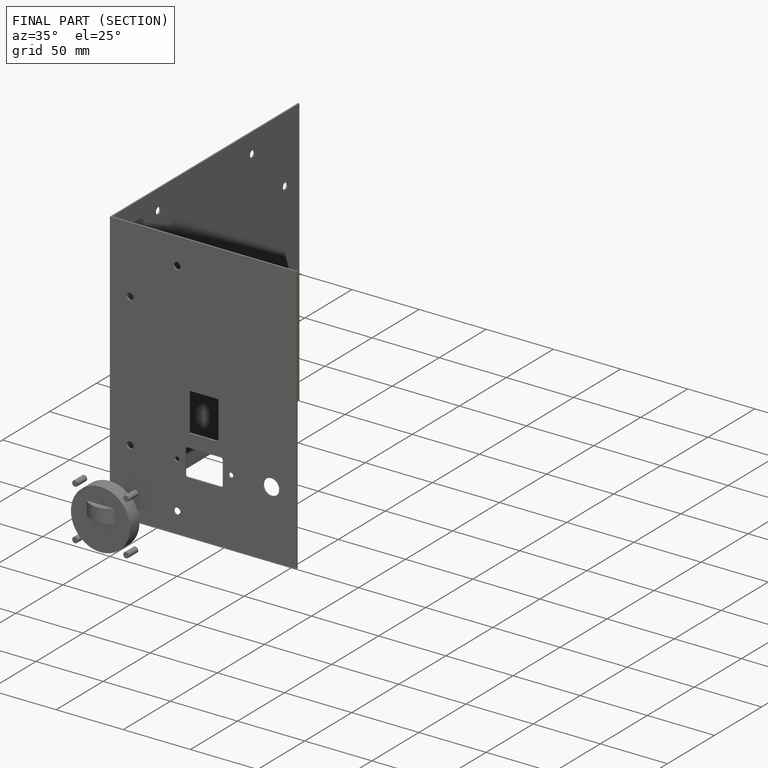
[diagram: finished part — half-section view (interior)]
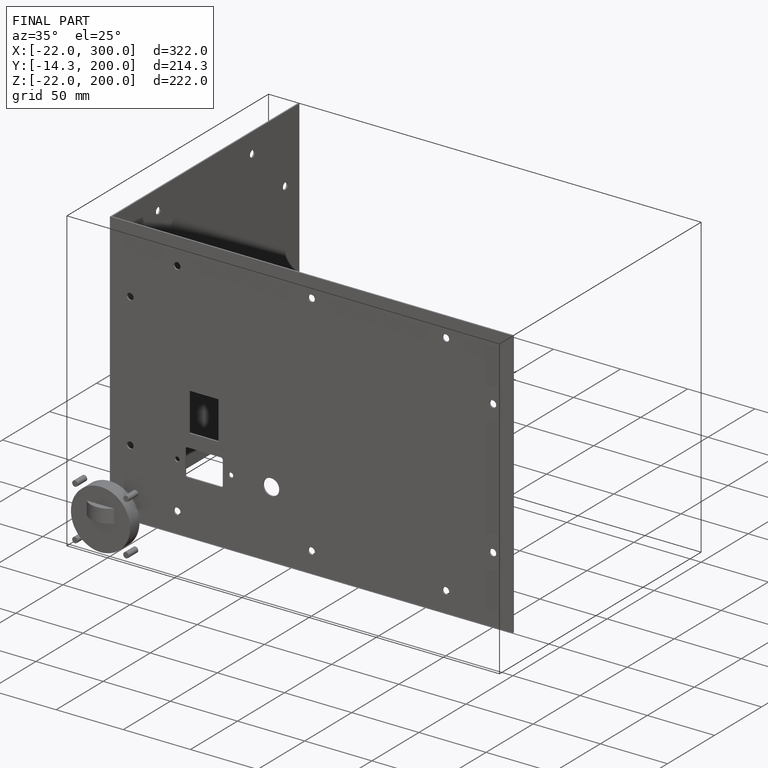
[diagram: finished part — iso view with bounding-box wireframe]
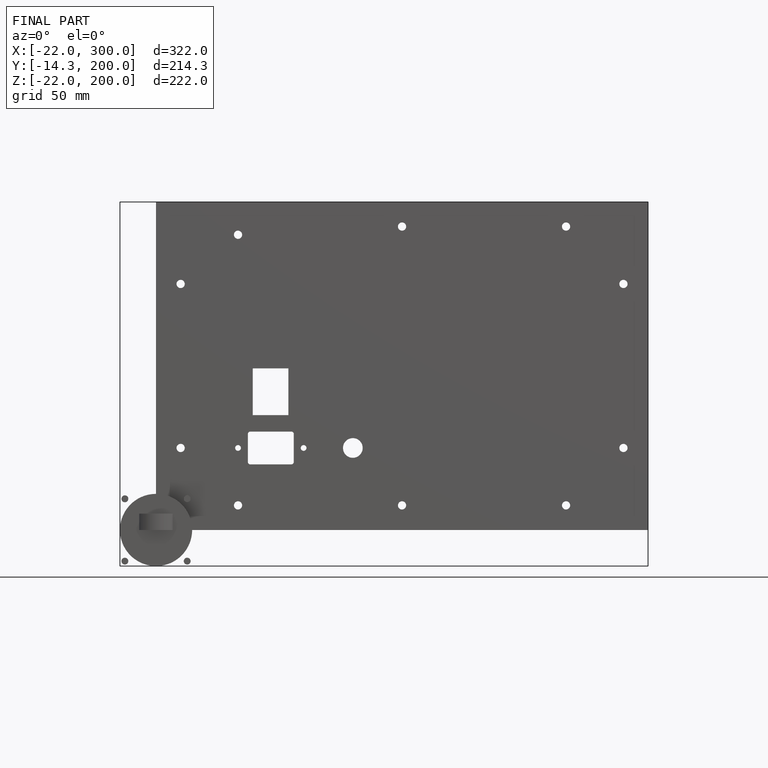
[diagram: finished part — front view with bounding-box wireframe]
